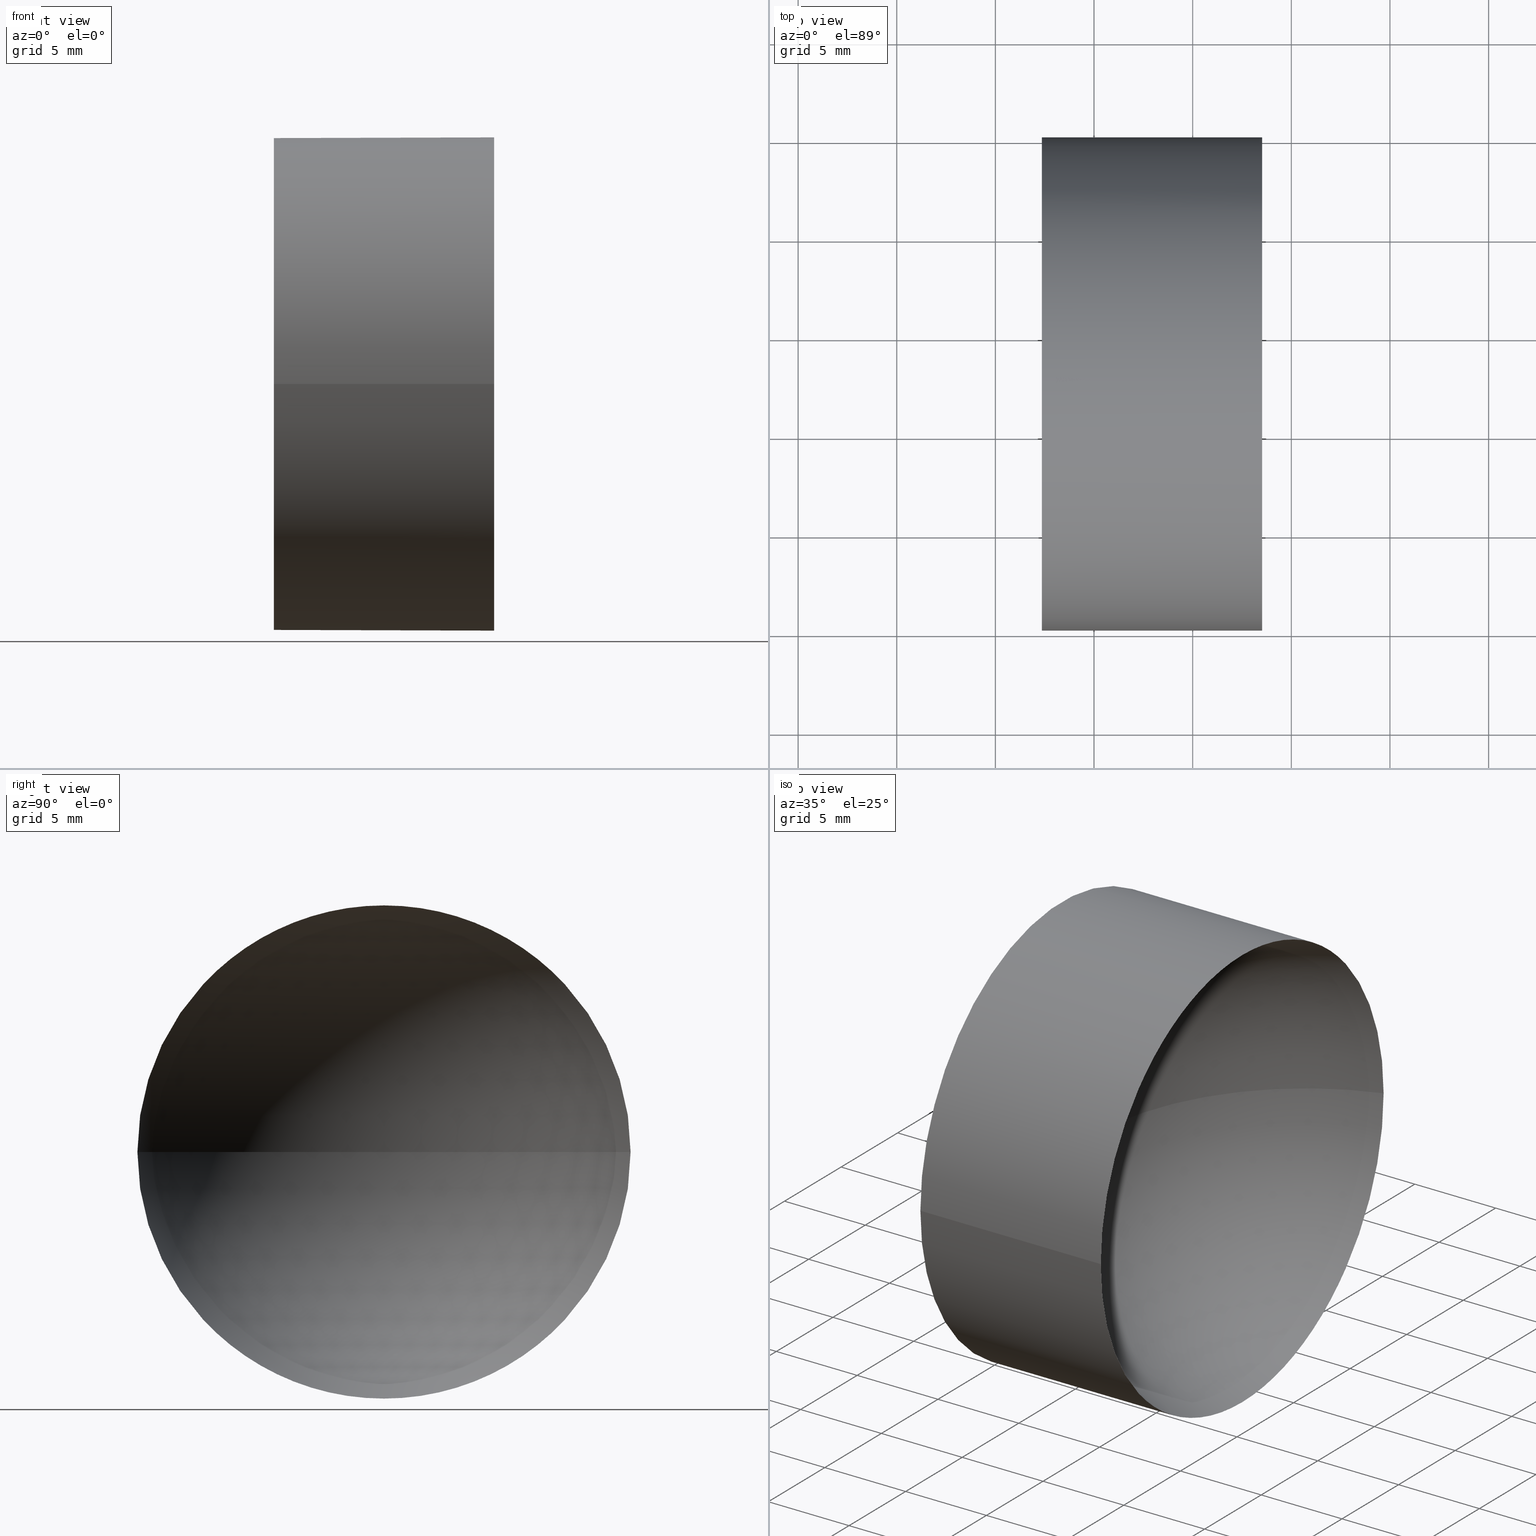
[diagram: canonical four-view strip — front | top / right | iso, engineering-drawing reading convention]
A machine part, canonical four-view strip (front | top / right | iso — engineering-drawing reading convention). The complete STEP part file that produces these views, byte-faithful:
ISO-10303-21;
HEADER;
FILE_DESCRIPTION (( 'STEP AP214' ),
    '1' );
FILE_NAME ('120149.STEP',
    '2019-06-20T02:38:14',
    ( '' ),
    ( '' ),
    'SwSTEP 2.0',
    'SolidWorks 2016',
    '' );
FILE_SCHEMA (( 'AUTOMOTIVE_DESIGN' ));
ENDSEC;

DATA;
#1 =( NAMED_UNIT ( * ) PLANE_ANGLE_UNIT ( ) SI_UNIT ( $, .RADIAN. ) );
#2 = COLOUR_RGB ( '',1.000000000000000000, 1.000000000000000000, 1.000000000000000000 ) ;
#3 = FACE_OUTER_BOUND ( 'NONE', #143, .T. ) ;
#4 = ORIENTED_EDGE ( 'NONE', *, *, #79, .T. ) ;
#5 = ORIENTED_EDGE ( 'NONE', *, *, #67, .F. ) ;
#6 = SURFACE_STYLE_FILL_AREA ( #51 ) ;
#7 = AXIS2_PLACEMENT_3D ( 'NONE', #26, #38, #27 ) ;
#8 = CARTESIAN_POINT ( 'NONE',  ( 55.00739462442117400, 20.07872591329309500, 0.0000000000000000000 ) ) ;
#9 = UNCERTAINTY_MEASURE_WITH_UNIT (LENGTH_MEASURE( 1.000000000000000100E-005 ), #154, 'distance_accuracy_value', 'NONE');
#10 = ORIENTED_EDGE ( 'NONE', *, *, #79, .F. ) ;
#11 = EDGE_CURVE ( 'NONE', #109, #22, #104, .T. ) ;
#12 = CARTESIAN_POINT ( 'NONE',  ( 72.46712028902548800, 32.57872591329309800, 0.0000000000000000000 ) ) ;
#13 = CARTESIAN_POINT ( 'NONE',  ( 68.51819015802109900, 20.07872591329309500, 0.0000000000000000000 ) ) ;
#14 = DIRECTION ( 'NONE',  ( -5.943490924618453600E-032, -1.224646799147353200E-016, 1.000000000000000000 ) ) ;
#15 = ORIENTED_EDGE ( 'NONE', *, *, #95, .T. ) ;
#16 = PLANE ( 'NONE',  #7 ) ;
#17 = CARTESIAN_POINT ( 'NONE',  ( 55.00739462442118100, 32.57872591329309800, 0.0000000000000000000 ) ) ;
#18 = EDGE_LOOP ( 'NONE', ( #134, #132, #54 ) ) ;
#19 = AXIS2_PLACEMENT_3D ( 'NONE', #137, #14, #72 ) ;
#20 = APPLICATION_CONTEXT ( 'automotive_design' ) ;
#21 =( GEOMETRIC_REPRESENTATION_CONTEXT ( 3 ) GLOBAL_UNCERTAINTY_ASSIGNED_CONTEXT ( ( #107 ) ) GLOBAL_UNIT_ASSIGNED_CONTEXT ( ( #37, #115, #89 ) ) REPRESENTATION_CONTEXT ( 'NONE', 'WORKASPACE' ) );
#22 = VERTEX_POINT ( 'NONE', #83 ) ;
#23 = EDGE_CURVE ( 'NONE', #46, #45, #111, .T. ) ;
#24 = ORIENTED_EDGE ( 'NONE', *, *, #67, .T. ) ;
#25 = SURFACE_STYLE_FILL_AREA ( #102 ) ;
#26 = CARTESIAN_POINT ( 'NONE',  ( 57.35819015802111700, 32.57872591329309100, 0.0000000000000000000 ) ) ;
#27 = DIRECTION ( 'NONE',  ( 4.853228644174421400E-016, 1.000000000000000000, 0.0000000000000000000 ) ) ;
#28 = EDGE_LOOP ( 'NONE', ( #10, #69, #31 ) ) ;
#29 = PRODUCT_DEFINITION ( 'δ֪', '', #148, #92 ) ;
#30 = SURFACE_SIDE_STYLE ('',( #25 ) ) ;
#31 = ORIENTED_EDGE ( 'NONE', *, *, #11, .F. ) ;
#32 =( GEOMETRIC_REPRESENTATION_CONTEXT ( 3 ) GLOBAL_UNCERTAINTY_ASSIGNED_CONTEXT ( ( #55 ) ) GLOBAL_UNIT_ASSIGNED_CONTEXT ( ( #49, #116, #59 ) ) REPRESENTATION_CONTEXT ( 'NONE', 'WORKASPACE' ) );
#33 = VECTOR ( 'NONE', #164, 1000.000000000000000 ) ;
#34 = PRODUCT_DEFINITION_SHAPE ( 'NONE', 'NONE',  #29 ) ;
#35 = CARTESIAN_POINT ( 'NONE',  ( 57.35819015802111000, 32.57872591329309800, 0.0000000000000000000 ) ) ;
#36 = FACE_OUTER_BOUND ( 'NONE', #149, .T. ) ;
#37 =( LENGTH_UNIT ( ) NAMED_UNIT ( * ) SI_UNIT ( .MILLI., .METRE. ) );
#38 = DIRECTION ( 'NONE',  ( 1.000000000000000000, -4.853228644174421400E-016, 0.0000000000000000000 ) ) ;
#39 = AXIS2_PLACEMENT_3D ( 'NONE', #130, #131, #141 ) ;
#40 = ORIENTED_EDGE ( 'NONE', *, *, #144, .T. ) ;
#41 = APPLICATION_CONTEXT ( 'automotive_design' ) ;
#42 = FILL_AREA_STYLE_COLOUR ( '', #56 ) ;
#43 = ORIENTED_EDGE ( 'NONE', *, *, #23, .F. ) ;
#44 = STYLED_ITEM ( 'NONE', ( #133 ), #120 ) ;
#45 = VERTEX_POINT ( 'NONE', #127 ) ;
#46 = VERTEX_POINT ( 'NONE', #161 ) ;
#47 = AXIS2_PLACEMENT_3D ( 'NONE', #12, #99, #101 ) ;
#48 = CARTESIAN_POINT ( 'NONE',  ( 55.00739462442118800, 45.07872591329309100, 1.530808498934191500E-015 ) ) ;
#49 =( LENGTH_UNIT ( ) NAMED_UNIT ( * ) SI_UNIT ( .MILLI., .METRE. ) );
#50 = DIRECTION ( 'NONE',  ( -1.000000000000000000, 4.853228644174421400E-016, -0.0000000000000000000 ) ) ;
#51 = FILL_AREA_STYLE ('',( #61 ) ) ;
#52 = APPLICATION_PROTOCOL_DEFINITION ( 'draft international standard', 'automotive_design', 1998, #41 ) ;
#53 = ADVANCED_FACE ( 'NONE', ( #3 ), #97, .T. ) ;
#54 = ORIENTED_EDGE ( 'NONE', *, *, #11, .T. ) ;
#55 = UNCERTAINTY_MEASURE_WITH_UNIT (LENGTH_MEASURE( 1.000000000000000100E-005 ), #49, 'distance_accuracy_value', 'NONE');
#56 = COLOUR_RGB ( '',1.000000000000000000, 1.000000000000000000, 1.000000000000000000 ) ;
#57 = CIRCLE ( 'NONE', #126, 12.50000000000000400 ) ;
#58 = STYLED_ITEM ( 'NONE', ( #153 ), #146 ) ;
#59 =( NAMED_UNIT ( * ) SI_UNIT ( $, .STERADIAN. ) SOLID_ANGLE_UNIT ( ) );
#60 = DIRECTION ( 'NONE',  ( -1.000000000000000000, 4.853228644174421400E-016, -0.0000000000000000000 ) ) ;
#61 = FILL_AREA_STYLE_COLOUR ( '', #2 ) ;
#62 = SURFACE_STYLE_USAGE ( .BOTH. , #140 ) ;
#63 = LINE ( 'NONE', #8, #160 ) ;
#64 = PRODUCT_CONTEXT ( 'NONE', #41, 'mechanical' ) ;
#65 = SPHERICAL_SURFACE ( 'NONE', #47, 13.10893013100436900 ) ;
#66 = ADVANCED_FACE ( 'NONE', ( #68 ), #65, .F. ) ;
#67 = EDGE_CURVE ( 'NONE', #124, #46, #108, .T. ) ;
#68 = FACE_OUTER_BOUND ( 'NONE', #18, .T. ) ;
#69 = ORIENTED_EDGE ( 'NONE', *, *, #110, .T. ) ;
#70 = DIRECTION ( 'NONE',  ( -1.000000000000000000, 4.853228644174421400E-016, -0.0000000000000000000 ) ) ;
#71 = PRESENTATION_LAYER_ASSIGNMENT (  '', '', ( #44 ) ) ;
#72 = DIRECTION ( 'NONE',  ( 0.0000000000000000000, -1.000000000000000000, -1.224646799147353000E-016 ) ) ;
#73 = DIRECTION ( 'NONE',  ( -1.000000000000000000, 4.853228644174421400E-016, -0.0000000000000000000 ) ) ;
#74 = PRODUCT ( '120149', '120149', '', ( #64 ) ) ;
#75 = AXIS2_PLACEMENT_3D ( 'NONE', #138, #60, #152 ) ;
#76 = EDGE_CURVE ( 'NONE', #109, #45, #63, .T. ) ;
#77 = CLOSED_SHELL ( 'NONE', ( #88, #90, #66, #53, #155 ) ) ;
#78 = MECHANICAL_DESIGN_GEOMETRIC_PRESENTATION_REPRESENTATION (  '', ( #44 ), #32 ) ;
#79 = EDGE_CURVE ( 'NONE', #124, #109, #157, .T. ) ;
#80 = CARTESIAN_POINT ( 'NONE',  ( 72.46712028902548800, 32.57872591329309800, 0.0000000000000000000 ) ) ;
#81 = DIRECTION ( 'NONE',  ( -5.551115123125784700E-016, -1.000000000000000000, 0.0000000000000000000 ) ) ;
#82 = AXIS2_PLACEMENT_3D ( 'NONE', #35, #70, #81 ) ;
#83 = CARTESIAN_POINT ( 'NONE',  ( 59.35819015802113100, 32.57872591329310600, 0.0000000000000000000 ) ) ;
#84 = DIRECTION ( 'NONE',  ( 0.0000000000000000000, -1.000000000000000000, 0.0000000000000000000 ) ) ;
#85 = SURFACE_STYLE_USAGE ( .BOTH. , #30 ) ;
#86 = DIRECTION ( 'NONE',  ( -5.551115123125784700E-016, -1.000000000000000000, 0.0000000000000000000 ) ) ;
#87 =( NAMED_UNIT ( * ) SI_UNIT ( $, .STERADIAN. ) SOLID_ANGLE_UNIT ( ) );
#88 = ADVANCED_FACE ( 'NONE', ( #36 ), #122, .T. ) ;
#89 =( NAMED_UNIT ( * ) SI_UNIT ( $, .STERADIAN. ) SOLID_ANGLE_UNIT ( ) );
#90 = ADVANCED_FACE ( 'NONE', ( #158 ), #128, .F. ) ;
#91 = APPLICATION_PROTOCOL_DEFINITION ( 'draft international standard', 'automotive_design', 1998, #20 ) ;
#92 = PRODUCT_DEFINITION_CONTEXT ( 'detailed design', #20, 'design' ) ;
#93 = PRESENTATION_LAYER_ASSIGNMENT (  '', '', ( #58 ) ) ;
#94 = CIRCLE ( 'NONE', #19, 13.10893013100436900 ) ;
#95 = EDGE_CURVE ( 'NONE', #109, #124, #57, .T. ) ;
#96 = AXIS2_PLACEMENT_3D ( 'NONE', #123, #162, #159 ) ;
#97 = CYLINDRICAL_SURFACE ( 'NONE', #96, 12.50000000000000000 ) ;
#98 = ORIENTED_EDGE ( 'NONE', *, *, #76, .F. ) ;
#99 = DIRECTION ( 'NONE',  ( 0.0000000000000000000, 0.0000000000000000000, 1.000000000000000000 ) ) ;
#100 = SHAPE_DEFINITION_REPRESENTATION ( #34, #146 ) ;
#101 = DIRECTION ( 'NONE',  ( 0.0000000000000000000, -1.000000000000000000, 0.0000000000000000000 ) ) ;
#102 = FILL_AREA_STYLE ('',( #42 ) ) ;
#103 = DIRECTION ( 'NONE',  ( 0.0000000000000000000, -1.000000000000000000, 0.0000000000000000000 ) ) ;
#104 = CIRCLE ( 'NONE', #121, 13.10893013100436600 ) ;
#105 = CARTESIAN_POINT ( 'NONE',  ( 68.51819015802109900, 45.07872591329309100, 1.530808498934190500E-015 ) ) ;
#106 = DIRECTION ( 'NONE',  ( -1.000000000000000000, 4.853228644174421400E-016, -0.0000000000000000000 ) ) ;
#107 = UNCERTAINTY_MEASURE_WITH_UNIT (LENGTH_MEASURE( 1.000000000000000100E-005 ), #37, 'distance_accuracy_value', 'NONE');
#108 = LINE ( 'NONE', #48, #33 ) ;
#109 = VERTEX_POINT ( 'NONE', #13 ) ;
#110 = EDGE_CURVE ( 'NONE', #124, #22, #94, .T. ) ;
#111 = CIRCLE ( 'NONE', #82, 12.49999999999999600 ) ;
#112 = ORIENTED_EDGE ( 'NONE', *, *, #144, .F. ) ;
#113 = DIRECTION ( 'NONE',  ( -1.000000000000000000, 0.0000000000000000000, 0.0000000000000000000 ) ) ;
#114 = CARTESIAN_POINT ( 'NONE',  ( 57.35819015802111000, 32.57872591329309800, 0.0000000000000000000 ) ) ;
#115 =( NAMED_UNIT ( * ) PLANE_ANGLE_UNIT ( ) SI_UNIT ( $, .RADIAN. ) );
#116 =( NAMED_UNIT ( * ) PLANE_ANGLE_UNIT ( ) SI_UNIT ( $, .RADIAN. ) );
#117 = PRODUCT_RELATED_PRODUCT_CATEGORY ( 'part', '', ( #74 ) ) ;
#118 = DIRECTION ( 'NONE',  ( -5.551115123125782700E-016, -1.000000000000000000, 0.0000000000000000000 ) ) ;
#119 = CARTESIAN_POINT ( 'NONE',  ( 72.46712028902548800, 32.57872591329309800, 0.0000000000000000000 ) ) ;
#120 = MANIFOLD_SOLID_BREP ( '��ת1', #77 ) ;
#121 = AXIS2_PLACEMENT_3D ( 'NONE', #80, #125, #113 ) ;
#122 = CYLINDRICAL_SURFACE ( 'NONE', #166, 12.50000000000000000 ) ;
#123 = CARTESIAN_POINT ( 'NONE',  ( 55.00739462442118100, 32.57872591329309800, 0.0000000000000000000 ) ) ;
#124 = VERTEX_POINT ( 'NONE', #105 ) ;
#125 = DIRECTION ( 'NONE',  ( 0.0000000000000000000, -0.0000000000000000000, -1.000000000000000000 ) ) ;
#126 = AXIS2_PLACEMENT_3D ( 'NONE', #129, #106, #103 ) ;
#127 = CARTESIAN_POINT ( 'NONE',  ( 57.35819015802110200, 20.07872591329309800, 0.0000000000000000000 ) ) ;
#128 = SPHERICAL_SURFACE ( 'NONE', #156, 13.10893013100436900 ) ;
#129 = CARTESIAN_POINT ( 'NONE',  ( 68.51819015802109900, 32.57872591329309100, 0.0000000000000000000 ) ) ;
#130 = CARTESIAN_POINT ( 'NONE',  ( 0.0000000000000000000, 0.0000000000000000000, 0.0000000000000000000 ) ) ;
#131 = DIRECTION ( 'NONE',  ( 0.0000000000000000000, 0.0000000000000000000, 1.000000000000000000 ) ) ;
#132 = ORIENTED_EDGE ( 'NONE', *, *, #95, .F. ) ;
#133 = PRESENTATION_STYLE_ASSIGNMENT (( #85 ) ) ;
#134 = ORIENTED_EDGE ( 'NONE', *, *, #110, .F. ) ;
#135 = FACE_OUTER_BOUND ( 'NONE', #165, .T. ) ;
#136 = DIRECTION ( 'NONE',  ( -1.000000000000000000, 4.853228644174421400E-016, -0.0000000000000000000 ) ) ;
#137 = CARTESIAN_POINT ( 'NONE',  ( 72.46712028902548800, 32.57872591329309800, 0.0000000000000000000 ) ) ;
#138 = CARTESIAN_POINT ( 'NONE',  ( 68.51819015802109900, 32.57872591329309100, 0.0000000000000000000 ) ) ;
#139 = ORIENTED_EDGE ( 'NONE', *, *, #23, .T. ) ;
#140 = SURFACE_SIDE_STYLE ('',( #6 ) ) ;
#141 = DIRECTION ( 'NONE',  ( 1.000000000000000000, 0.0000000000000000000, 0.0000000000000000000 ) ) ;
#142 = AXIS2_PLACEMENT_3D ( 'NONE', #114, #50, #86 ) ;
#143 = EDGE_LOOP ( 'NONE', ( #5, #4, #147, #43 ) ) ;
#144 = EDGE_CURVE ( 'NONE', #45, #46, #145, .T. ) ;
#145 = CIRCLE ( 'NONE', #142, 12.49999999999999600 ) ;
#146 = ADVANCED_BREP_SHAPE_REPRESENTATION ( '120149', ( #120, #39 ), #21 ) ;
#147 = ORIENTED_EDGE ( 'NONE', *, *, #76, .T. ) ;
#148 = PRODUCT_DEFINITION_FORMATION_WITH_SPECIFIED_SOURCE ( '�κ�', '', #74, .NOT_KNOWN. ) ;
#149 = EDGE_LOOP ( 'NONE', ( #15, #24, #112, #98 ) ) ;
#150 =( GEOMETRIC_REPRESENTATION_CONTEXT ( 3 ) GLOBAL_UNCERTAINTY_ASSIGNED_CONTEXT ( ( #9 ) ) GLOBAL_UNIT_ASSIGNED_CONTEXT ( ( #154, #1, #87 ) ) REPRESENTATION_CONTEXT ( 'NONE', 'WORKASPACE' ) );
#151 = DIRECTION ( 'NONE',  ( 0.0000000000000000000, 0.0000000000000000000, 1.000000000000000000 ) ) ;
#152 = DIRECTION ( 'NONE',  ( 0.0000000000000000000, -1.000000000000000000, 0.0000000000000000000 ) ) ;
#153 = PRESENTATION_STYLE_ASSIGNMENT (( #62 ) ) ;
#154 =( LENGTH_UNIT ( ) NAMED_UNIT ( * ) SI_UNIT ( .MILLI., .METRE. ) );
#155 = ADVANCED_FACE ( 'NONE', ( #135 ), #16, .F. ) ;
#156 = AXIS2_PLACEMENT_3D ( 'NONE', #119, #151, #84 ) ;
#157 = CIRCLE ( 'NONE', #75, 12.50000000000000400 ) ;
#158 = FACE_OUTER_BOUND ( 'NONE', #28, .T. ) ;
#159 = DIRECTION ( 'NONE',  ( -5.551115123125782700E-016, -1.000000000000000000, 0.0000000000000000000 ) ) ;
#160 = VECTOR ( 'NONE', #136, 1000.000000000000000 ) ;
#161 = CARTESIAN_POINT ( 'NONE',  ( 57.35819015802111700, 45.07872591329309100, 1.530808498934191900E-015 ) ) ;
#162 = DIRECTION ( 'NONE',  ( -1.000000000000000000, 4.853228644174421400E-016, -0.0000000000000000000 ) ) ;
#163 = MECHANICAL_DESIGN_GEOMETRIC_PRESENTATION_REPRESENTATION (  '', ( #58 ), #150 ) ;
#164 = DIRECTION ( 'NONE',  ( -1.000000000000000000, 4.853228644174421400E-016, -0.0000000000000000000 ) ) ;
#165 = EDGE_LOOP ( 'NONE', ( #40, #139 ) ) ;
#166 = AXIS2_PLACEMENT_3D ( 'NONE', #17, #73, #118 ) ;
ENDSEC;
END-ISO-10303-21;
